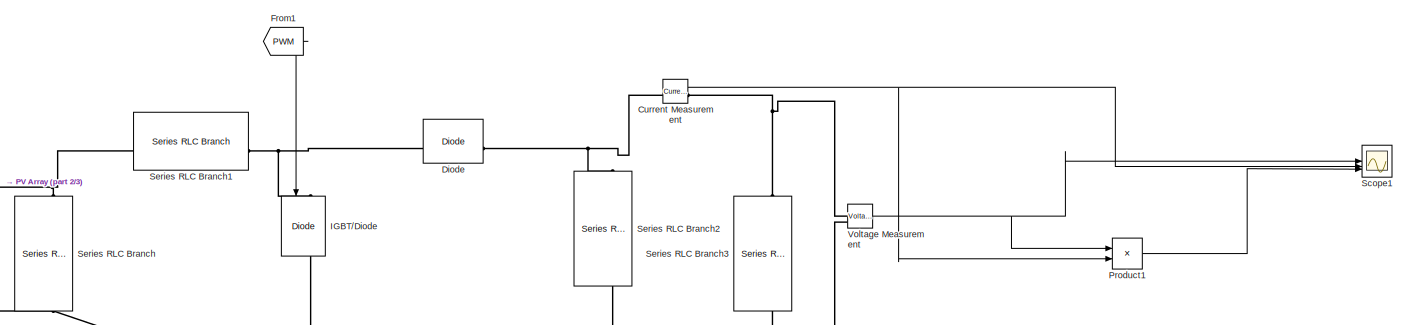
[diagram: root canvas - part 1/3, full width, top band]
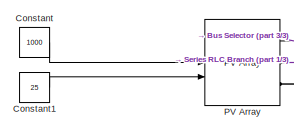
[diagram: root canvas - part 2/3, middle left region]
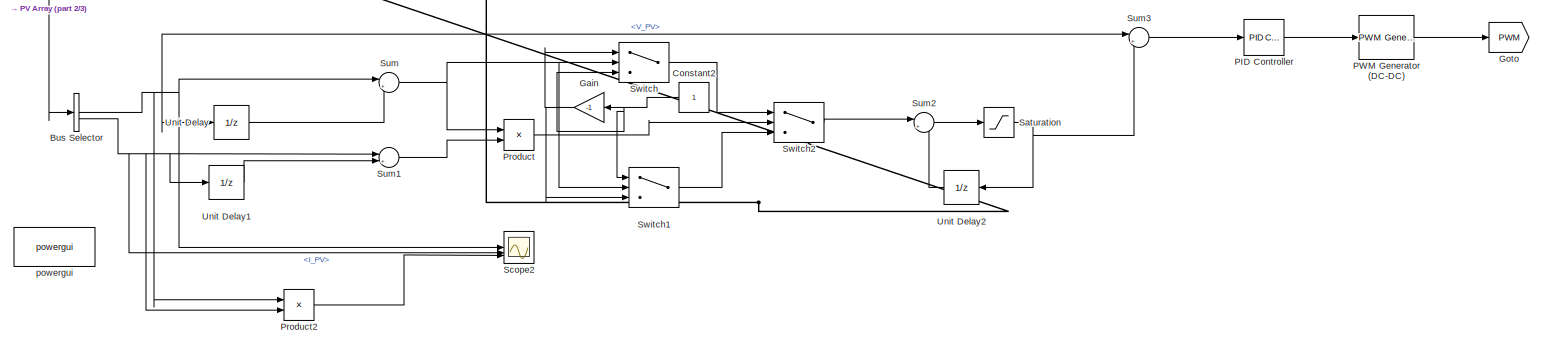
[diagram: root canvas - part 3/3, full width, bottom band]
MODEL slx_63ef9ffeeb09
KIND model
CONFIG AbsTol = auto
CONFIG EnableMultiTasking = off
CONFIG FixedStep = auto
CONFIG MaxStep = auto
CONFIG MinStep = auto
CONFIG RelTol = 1e-3
CONFIG SampleTimeConstraint = Unconstrained
CONFIG SolverName = VariableStepAuto
CONFIG StartTime = 0.0
CONFIG StopTime = 5
BLOCK [BusSelector] Bus Selector
  OutputSignals = V_PV,I_PV
BLOCK [Constant] Constant
  Value = 1000
BLOCK [Constant] Constant1
  Value = 25
BLOCK [Constant] Constant2
  NameLocation = top
BLOCK [Reference] Current Measurement  REF=spsCurrentMeasurementLib/Current Measurement
  LibrarySourceBlock = sps_lib/Sensors and Measurements/Current Measurement
  SourceBlock = spsCurrentMeasurementLib/Current Measurement
  SourceType = Current Measurement
  UserDataPersistent = on
BLOCK [Reference] Diode  REF=spsDiodeLib/Diode
  LibrarySourceBlock = sps_lib/Power Electronics/Diode
  SourceBlock = spsDiodeLib/Diode
  SourceType = Diode
BLOCK [From] From1
  GotoTag = PWM
BLOCK [Gain] Gain
  Gain = -1
  NameLocation = top
BLOCK [Goto] Goto
  GotoTag = PWM
BLOCK [Reference] IGBT//Diode  REF=spsIGBTDiodeLib/IGBT//Diode
  LibrarySourceBlock = sps_lib/Power Electronics/IGBT//Diode
  NameLocation = left
  SourceBlock = spsIGBTDiodeLib/IGBT//Diode
  SourceType = IGBT/Diode
BLOCK [Reference] PID Controller  REF=slpidlib/PID Controller
  LibrarySourceBlock = simulink/Continuous/PID Controller
  SourceBlock = slpidlib/PID Controller
  SourceType = PID 1dof
BLOCK [Reference] PV Array  REF=spsPVArrayLib/PV Array
  LibrarySourceBlock = sps_lib/Sources/PV Array
  SourceBlock = spsPVArrayLib/PV Array
  SourceType = PV array
BLOCK [Reference] PWM Generator (DC-DC)  REF=spsPWMGeneratorDCDCLib/PWM Generator
(DC-DC)
  LibrarySourceBlock = sps_lib/Power Electronics/Power Electronics Control/PWM Generator\n(DC-DC)
  SourceBlock = spsPWMGeneratorDCDCLib/PWM Generator\n(DC-DC)
  SourceType = PWM Generator (DC-DC)
BLOCK [Product] Product
BLOCK [Product] Product1
BLOCK [Product] Product2
BLOCK [Saturate] Saturation
  LowerLimit = 350
  UpperLimit = 400
BLOCK [Scope] Scope1
  Floating = off
  NumInputPorts = 3
  ScopeSpecificationString = Simulink.scopes.TimeScopeBlockCfg('CurrentConfiguration', extmgr.ConfigurationSet(extmgr.Configuration('Core','General UI',true),extmgr.Configuration('Core','Source UI',true),extmgr.Configuration('Sources','WiredSimulink',true,'DataLoggingVariableName','ScopeData1'),extmgr.Configuration('Visuals','Time Domain',true,'SerializedDisplays',{struct('MinYLimReal','-81.10383','MaxYLimReal','729.93444','Y...<+3062ch>
BLOCK [Scope] Scope2
  Floating = off
  NumInputPorts = 3
  ScopeSpecificationString = Simulink.scopes.TimeScopeBlockCfg('CurrentConfiguration', extmgr.ConfigurationSet(extmgr.Configuration('Core','General UI',true),extmgr.Configuration('Core','Source UI',true),extmgr.Configuration('Sources','WiredSimulink',true,'DataLoggingVariableName','ScopeData2'),extmgr.Configuration('Visuals','Time Domain',true,'SerializedDisplays',{struct('MinYLimReal','-54.80471','MaxYLimReal','493.24242','Y...<+3062ch>
BLOCK [Reference] Series RLC Branch  REF=spsSeriesRLCBranchLib/Series RLC Branch
  LibrarySourceBlock = sps_lib/Passives/Series RLC Branch
  NameLocation = left
  SourceBlock = spsSeriesRLCBranchLib/Series RLC Branch
  SourceType = Series RLC Branch
BLOCK [Reference] Series RLC Branch1  REF=spsSeriesRLCBranchLib/Series RLC Branch
  LibrarySourceBlock = sps_lib/Passives/Series RLC Branch
  SourceBlock = spsSeriesRLCBranchLib/Series RLC Branch
  SourceType = Series RLC Branch
BLOCK [Reference] Series RLC Branch2  REF=spsSeriesRLCBranchLib/Series RLC Branch
  LibrarySourceBlock = sps_lib/Passives/Series RLC Branch
  NameLocation = left
  SourceBlock = spsSeriesRLCBranchLib/Series RLC Branch
  SourceType = Series RLC Branch
BLOCK [Reference] Series RLC Branch3  REF=spsSeriesRLCBranchLib/Series RLC Branch
  LibrarySourceBlock = sps_lib/Passives/Series RLC Branch
  NameLocation = left
  SourceBlock = spsSeriesRLCBranchLib/Series RLC Branch
  SourceType = Series RLC Branch
BLOCK [Sum] Sum
  Inputs = |+-
BLOCK [Sum] Sum1
  Inputs = |+-
BLOCK [Sum] Sum2
  Inputs = |++
BLOCK [Sum] Sum3
  Inputs = |+-
BLOCK [Switch] Switch
  Criteria = u2 > Threshold
  InputSameDT = off
  SaturateOnIntegerOverflow = off
BLOCK [Switch] Switch1
  Criteria = u2 > Threshold
  InputSameDT = off
  SaturateOnIntegerOverflow = off
BLOCK [Switch] Switch2
  Criteria = u2 > Threshold
  InputSameDT = off
  SaturateOnIntegerOverflow = off
BLOCK [UnitDelay] Unit Delay
  HasFrameUpgradeWarning = on
  SampleTime = -1
BLOCK [UnitDelay] Unit Delay1
  HasFrameUpgradeWarning = on
  SampleTime = -1
BLOCK [UnitDelay] Unit Delay2
  HasFrameUpgradeWarning = on
  NameLocation = top
  SampleTime = -1
BLOCK [Reference] Voltage Measurement  REF=spsVoltageMeasurementLib/Voltage Measurement
  LibrarySourceBlock = sps_lib/Sensors and Measurements/Voltage Measurement
  SourceBlock = spsVoltageMeasurementLib/Voltage Measurement
  SourceType = Voltage Measurement
  UserDataPersistent = on
BLOCK [Reference] powergui  REF=sps_lib/powergui
  LibrarySourceBlock = sps_lib/powergui
  Priority = 1
  SourceBlock = sps_lib/powergui
  SourceType = PSB option menu block
NET Bus Selector:1 -> Product2:1, Scope2:1, Sum3:1, Sum:1, Unit Delay:1
NET Bus Selector:2 -> Product2:2, Scope2:2, Sum1:1, Unit Delay1:1
LINE Constant1:1 -> PV Array:2
NET Constant2:1 -> Gain:1, Switch1:1, Switch:3
LINE Constant:1 -> PV Array:1
NET Current Measurement:1 -> Product1:2, Scope1:2
LINE From1:1 -> IGBT//Diode:1
NET Gain:1 -> Switch1:3, Switch:1
LINE PID Controller:1 -> PWM Generator (DC-DC):1
LINE PV Array:1 -> Bus Selector:1
LINE PWM Generator (DC-DC):1 -> Goto:1
LINE Product1:1 -> Scope1:3
LINE Product2:1 -> Scope2:3
LINE Product:1 -> Switch2:2
NET Saturation:1 -> Sum3:2, Unit Delay2:1
LINE Sum1:1 -> Product:2
LINE Sum2:1 -> Saturation:1
LINE Sum3:1 -> PID Controller:1
NET Sum:1 -> Product:1, Switch1:2, Switch:2
LINE Switch1:1 -> Switch2:3
LINE Switch2:1 -> Sum2:1
LINE Switch:1 -> Switch2:1
LINE Unit Delay1:1 -> Sum1:2
LINE Unit Delay2:1 -> Sum2:2
LINE Unit Delay:1 -> Sum:2
NET Voltage Measurement:1 -> Product1:1, Scope1:1
PNET net1: Current Measurement:LConn1 -- Diode:RConn1 -- Series RLC Branch2:LConn1
PNET net2: Current Measurement:RConn1 -- Series RLC Branch3:LConn1 -- Voltage Measurement:LConn1
PNET net3: Diode:LConn1 -- IGBT//Diode:LConn1 -- Series RLC Branch1:RConn1
PNET net4: IGBT//Diode:RConn1 -- PV Array:RConn2 -- Series RLC Branch2:RConn1 -- Series RLC Branch3:RConn1 -- Series RLC Branch:RConn1 -- Voltage Measurement:LConn2
PNET net5: PV Array:RConn1 -- Series RLC Branch1:LConn1 -- Series RLC Branch:LConn1
note: NET lines group one-source signal fan-out (src -> all destinations, sorted); 1:1 wires keep LINE; PNET lines group multi-terminal physical nets as a canonical sorted terminal list (undirected conserving connections); 2-terminal nets keep the pairwise PLINE form
